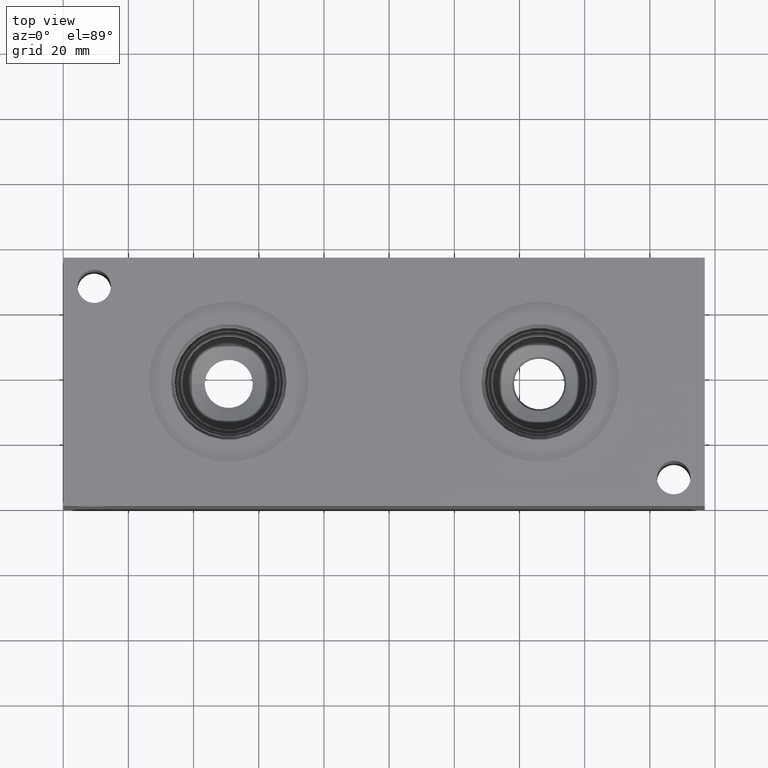
[diagram: clean part render]
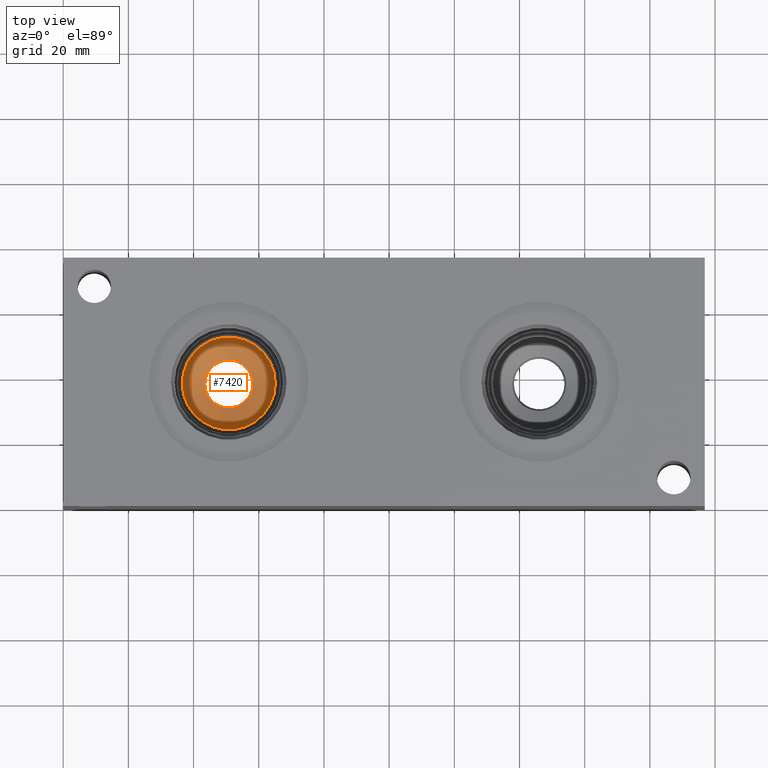
[diagram: same view with one face highlighted and labeled with its STEP entity id]
A machine part, top view. The second image highlights one B-rep face of the part: STEP entity #7420.
In plain terms, the highlighted conical surface has half-angle 60 deg.
Its self-contained STEP definition (entity closure, byte-faithful):
#71=CONICAL_SURFACE('',#7797,7.14375,1.0471975511966);
#115=CIRCLE('',#7721,7.36829797773046);
#154=CIRCLE('',#7798,14.2875);
#155=CIRCLE('',#7799,14.2875);
#893=FACE_OUTER_BOUND('',#1310,.T.);
#1310=EDGE_LOOP('',(#6438,#6439,#6440,#6441,#6442));
#2035=LINE('',#12680,#2750);
#2750=VECTOR('',#9227,7.14375);
#3383=VERTEX_POINT('',#12531);
#3426=VERTEX_POINT('',#12677);
#3427=VERTEX_POINT('',#12678);
#4368=EDGE_CURVE('',#3383,#3383,#115,.T.);
#4440=EDGE_CURVE('',#3426,#3427,#154,.T.);
#4441=EDGE_CURVE('',#3427,#3383,#2035,.T.);
#4442=EDGE_CURVE('',#3427,#3426,#155,.T.);
#6438=ORIENTED_EDGE('',*,*,#4440,.T.);
#6439=ORIENTED_EDGE('',*,*,#4441,.T.);
#6440=ORIENTED_EDGE('',*,*,#4368,.T.);
#6441=ORIENTED_EDGE('',*,*,#4441,.F.);
#6442=ORIENTED_EDGE('',*,*,#4442,.T.);
#7420=ADVANCED_FACE('',(#893),#71,.F.);
#7721=AXIS2_PLACEMENT_3D('',#12533,#9046,#9047);
#7797=AXIS2_PLACEMENT_3D('',#12676,#9223,#9224);
#7798=AXIS2_PLACEMENT_3D('',#12679,#9225,#9226);
#7799=AXIS2_PLACEMENT_3D('',#12681,#9228,#9229);
#9046=DIRECTION('center_axis',(0.,0.,-1.));
#9047=DIRECTION('ref_axis',(1.,0.,0.));
#9223=DIRECTION('center_axis',(0.,0.,1.));
#9224=DIRECTION('ref_axis',(1.,0.,0.));
#9225=DIRECTION('center_axis',(0.,0.,1.));
#9226=DIRECTION('ref_axis',(1.,0.,0.));
#9227=DIRECTION('',(0.866025403784438,1.06057523872491E-16,-0.5));
#9228=DIRECTION('center_axis',(0.,0.,1.));
#9229=DIRECTION('ref_axis',(1.,0.,0.));
#12531=CARTESIAN_POINT('',(43.4317020222695,38.1,39.5571368498653));
#12533=CARTESIAN_POINT('Origin',(50.8,38.1,39.5571368498653));
#12676=CARTESIAN_POINT('Origin',(50.8,38.1,39.4274940144766));
#12677=CARTESIAN_POINT('',(65.0875,38.1,43.55194));
#12678=CARTESIAN_POINT('',(36.5125,38.1,43.55194));
#12679=CARTESIAN_POINT('Origin',(50.8,38.1,43.55194));
#12680=CARTESIAN_POINT('',(43.65625,38.1,39.4274940144766));
#12681=CARTESIAN_POINT('Origin',(50.8,38.1,43.55194));